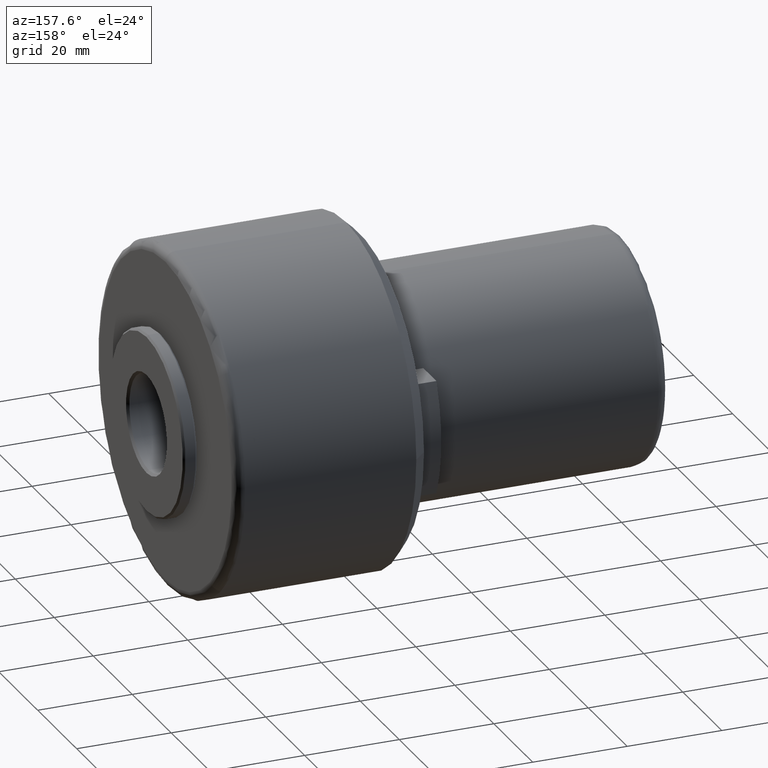
[diagram: clean part render]
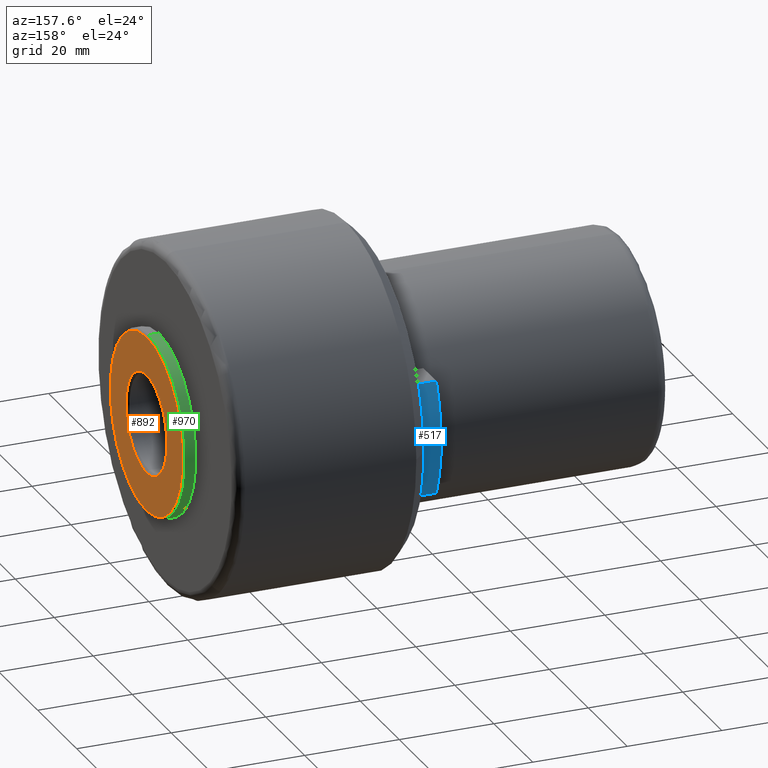
[diagram: same view with three faces highlighted in distinct colors, each labeled with its STEP entity id]
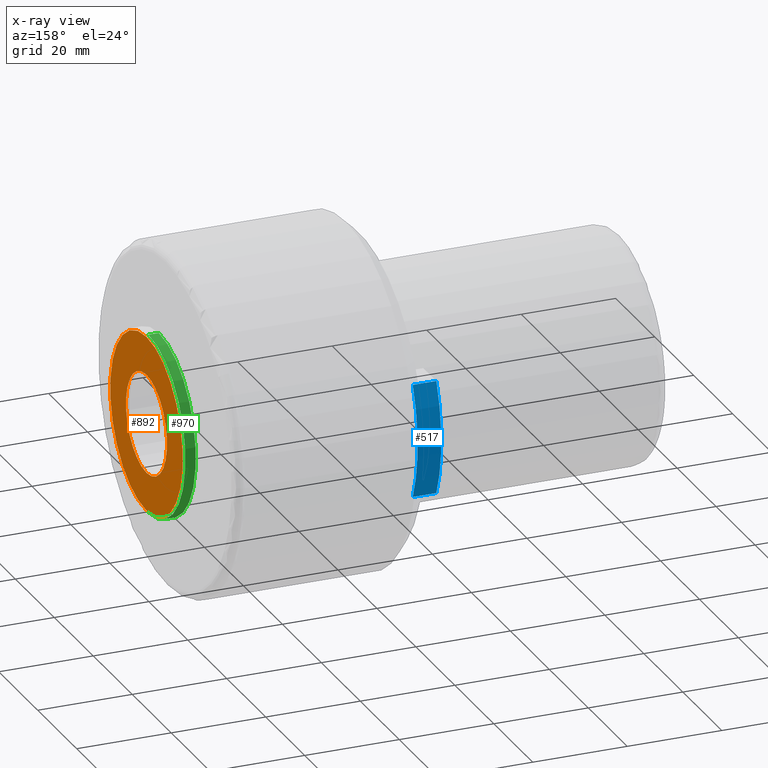
[diagram: x-ray of the same camera — body ghosted, the three highlighted faces saturated]
A machine part, auxiliary view with three faces highlighted in distinct colors.
The next image is the same camera in x-ray (body ghosted, the three faces saturated) — at least one of them is partly hidden behind the body in this view.
Their STEP definitions:

[orange] entity #892 — the highlighted planar face has unit normal (1, -0, 0).
#79 = CARTESIAN_POINT ( 'NONE',  ( 100.5000000000000300, 2.302335982397022300E-015, -18.59999999999997300 ) ) ;
#93 = DIRECTION ( 'NONE',  ( 0.0000000000000000000, 0.0000000000000000000, 1.000000000000000000 ) ) ;
#96 = CARTESIAN_POINT ( 'NONE',  ( 100.5000000000000000, 1.285879139104718700E-015, 10.49999999999998200 ) ) ;
#111 = CARTESIAN_POINT ( 'NONE',  ( 100.5000000000000000, 0.0000000000000000000, 0.0000000000000000000 ) ) ;
#157 = AXIS2_PLACEMENT_3D ( 'NONE', #537, #1290, #649 ) ;
#354 = VERTEX_POINT ( 'NONE', #96 ) ;
#360 = CIRCLE ( 'NONE', #157, 18.59999999999997300 ) ;
#370 = EDGE_CURVE ( 'NONE', #354, #637, #1256, .T. ) ;
#392 = CARTESIAN_POINT ( 'NONE',  ( 100.5000000000000300, 0.0000000000000000000, 18.59999999999997300 ) ) ;
#395 = PLANE ( 'NONE',  #1388 ) ;
#409 = CARTESIAN_POINT ( 'NONE',  ( 100.5000000000000000, 0.0000000000000000000, 0.0000000000000000000 ) ) ;
#413 = EDGE_LOOP ( 'NONE', ( #1030, #1020 ) ) ;
#513 = DIRECTION ( 'NONE',  ( 0.0000000000000000000, 0.0000000000000000000, -1.000000000000000000 ) ) ;
#529 = DIRECTION ( 'NONE',  ( 0.0000000000000000000, 0.0000000000000000000, -1.000000000000000000 ) ) ;
#537 = CARTESIAN_POINT ( 'NONE',  ( 100.5000000000000300, 0.0000000000000000000, 0.0000000000000000000 ) ) ;
#615 = DIRECTION ( 'NONE',  ( 0.0000000000000000000, 0.0000000000000000000, -1.000000000000000000 ) ) ;
#637 = VERTEX_POINT ( 'NONE', #1342 ) ;
#649 = DIRECTION ( 'NONE',  ( 0.0000000000000000000, 0.0000000000000000000, 1.000000000000000000 ) ) ;
#725 = CIRCLE ( 'NONE', #1147, 18.59999999999997300 ) ;
#744 = DIRECTION ( 'NONE',  ( -1.000000000000000000, 0.0000000000000000000, 0.0000000000000000000 ) ) ;
#835 = VERTEX_POINT ( 'NONE', #392 ) ;
#881 = EDGE_LOOP ( 'NONE', ( #1179, #1004 ) ) ;
#892 = ADVANCED_FACE ( 'NONE', ( #1381, #1354 ), #395, .T. ) ;
#968 = VERTEX_POINT ( 'NONE', #79 ) ;
#1004 = ORIENTED_EDGE ( 'NONE', *, *, #1022, .F. ) ;
#1013 = EDGE_CURVE ( 'NONE', #637, #354, #1299, .T. ) ;
#1020 = ORIENTED_EDGE ( 'NONE', *, *, #370, .T. ) ;
#1022 = EDGE_CURVE ( 'NONE', #968, #835, #725, .T. ) ;
#1030 = ORIENTED_EDGE ( 'NONE', *, *, #1013, .T. ) ;
#1061 = EDGE_CURVE ( 'NONE', #835, #968, #360, .T. ) ;
#1089 = DIRECTION ( 'NONE',  ( -1.000000000000000000, 0.0000000000000000000, -0.0000000000000000000 ) ) ;
#1144 = CARTESIAN_POINT ( 'NONE',  ( 100.5000000000000000, -18.82320000000000300, 18.82320000000000300 ) ) ;
#1147 = AXIS2_PLACEMENT_3D ( 'NONE', #1385, #744, #93 ) ;
#1152 = DIRECTION ( 'NONE',  ( 1.000000000000000000, -0.0000000000000000000, 0.0000000000000000000 ) ) ;
#1174 = DIRECTION ( 'NONE',  ( -1.000000000000000000, 0.0000000000000000000, -0.0000000000000000000 ) ) ;
#1179 = ORIENTED_EDGE ( 'NONE', *, *, #1061, .F. ) ;
#1194 = AXIS2_PLACEMENT_3D ( 'NONE', #111, #1089, #615 ) ;
#1238 = AXIS2_PLACEMENT_3D ( 'NONE', #409, #1174, #529 ) ;
#1256 = CIRCLE ( 'NONE', #1194, 10.49999999999998200 ) ;
#1290 = DIRECTION ( 'NONE',  ( -1.000000000000000000, 0.0000000000000000000, 0.0000000000000000000 ) ) ;
#1299 = CIRCLE ( 'NONE', #1238, 10.49999999999998200 ) ;
#1342 = CARTESIAN_POINT ( 'NONE',  ( 100.5000000000000000, 0.0000000000000000000, -10.49999999999998200 ) ) ;
#1354 = FACE_OUTER_BOUND ( 'NONE', #881, .T. ) ;
#1381 = FACE_BOUND ( 'NONE', #413, .T. ) ;
#1385 = CARTESIAN_POINT ( 'NONE',  ( 100.5000000000000300, 0.0000000000000000000, 0.0000000000000000000 ) ) ;
#1388 = AXIS2_PLACEMENT_3D ( 'NONE', #1144, #1152, #513 ) ;

[blue] entity #517 — the highlighted cylindrical surface (partial cylindrical patch) has radius 30 mm, axis along (-1, -0, -0).
#75 = VECTOR ( 'NONE', #372, 1000.000000000000000 ) ;
#87 = CARTESIAN_POINT ( 'NONE',  ( 55.50000000000000000, 3.677383230559753400E-031, 0.0000000000000000000 ) ) ;
#194 = DIRECTION ( 'NONE',  ( 1.000000000000000000, -0.0000000000000000000, 0.0000000000000000000 ) ) ;
#198 = EDGE_CURVE ( 'NONE', #478, #1397, #779, .T. ) ;
#222 = CARTESIAN_POINT ( 'NONE',  ( 55.49999999999999300, 27.49545417074602900, 11.99999999783530000 ) ) ;
#248 = DIRECTION ( 'NONE',  ( 2.312964634635743000E-016, -1.000000000000000000, 0.0000000000000000000 ) ) ;
#258 = CARTESIAN_POINT ( 'NONE',  ( 50.50000000000000000, 27.49545416980128100, 12.00000000000000000 ) ) ;
#284 = CARTESIAN_POINT ( 'NONE',  ( 55.50000000000000000, 0.0000000000000000000, 0.0000000000000000000 ) ) ;
#323 = DIRECTION ( 'NONE',  ( 1.000000000000000000, 1.156482317317871700E-016, 0.0000000000000000000 ) ) ;
#339 = CYLINDRICAL_SURFACE ( 'NONE', #909, 30.00000000000000000 ) ;
#372 = DIRECTION ( 'NONE',  ( -1.000000000000000000, -0.0000000000000000000, -0.0000000000000000000 ) ) ;
#379 = VECTOR ( 'NONE', #194, 1000.000000000000000 ) ;
#408 = CIRCLE ( 'NONE', #1081, 30.00000000000000000 ) ;
#429 = ORIENTED_EDGE ( 'NONE', *, *, #530, .T. ) ;
#434 = VERTEX_POINT ( 'NONE', #258 ) ;
#452 = DIRECTION ( 'NONE',  ( 2.312964634635743000E-016, -1.000000000000000000, 0.0000000000000000000 ) ) ;
#478 = VERTEX_POINT ( 'NONE', #222 ) ;
#488 = CARTESIAN_POINT ( 'NONE',  ( 50.50000000000000000, 27.49545416986751800, 12.00000000000000000 ) ) ;
#494 = DIRECTION ( 'NONE',  ( 2.312964634635743000E-016, -1.000000000000000000, 1.776356839400250500E-015 ) ) ;
#507 = EDGE_CURVE ( 'NONE', #834, #434, #408, .T. ) ;
#517 = ADVANCED_FACE ( 'NONE', ( #671 ), #339, .T. ) ;
#530 = EDGE_CURVE ( 'NONE', #434, #478, #926, .T. ) ;
#671 = FACE_OUTER_BOUND ( 'NONE', #1165, .T. ) ;
#704 = EDGE_CURVE ( 'NONE', #1397, #834, #940, .T. ) ;
#779 = CIRCLE ( 'NONE', #986, 30.00000000000000000 ) ;
#796 = ORIENTED_EDGE ( 'NONE', *, *, #704, .T. ) ;
#805 = CARTESIAN_POINT ( 'NONE',  ( 50.50000000000000000, 27.49545417171844600, -12.00000000000000000 ) ) ;
#834 = VERTEX_POINT ( 'NONE', #1370 ) ;
#909 = AXIS2_PLACEMENT_3D ( 'NONE', #284, #1169, #248 ) ;
#926 = LINE ( 'NONE', #488, #379 ) ;
#940 = LINE ( 'NONE', #805, #75 ) ;
#977 = ORIENTED_EDGE ( 'NONE', *, *, #198, .T. ) ;
#986 = AXIS2_PLACEMENT_3D ( 'NONE', #87, #1155, #452 ) ;
#1081 = AXIS2_PLACEMENT_3D ( 'NONE', #1132, #323, #494 ) ;
#1132 = CARTESIAN_POINT ( 'NONE',  ( 50.50000000000000000, -5.782411586589351700E-016, 0.0000000000000000000 ) ) ;
#1155 = DIRECTION ( 'NONE',  ( -1.000000000000000000, -1.156482317317871700E-016, -0.0000000000000000000 ) ) ;
#1165 = EDGE_LOOP ( 'NONE', ( #796, #1343, #429, #977 ) ) ;
#1169 = DIRECTION ( 'NONE',  ( -1.000000000000000000, -1.156482317317871700E-016, -0.0000000000000000000 ) ) ;
#1210 = CARTESIAN_POINT ( 'NONE',  ( 55.49999999999999300, 27.49545417165220900, -11.99999999787949900 ) ) ;
#1343 = ORIENTED_EDGE ( 'NONE', *, *, #507, .T. ) ;
#1370 = CARTESIAN_POINT ( 'NONE',  ( 50.50000000000000000, 27.49545417072674200, -12.00000000000000000 ) ) ;
#1397 = VERTEX_POINT ( 'NONE', #1210 ) ;

[green] entity #970 — the highlighted cylindrical surface (partial cylindrical patch) has radius 19 mm, axis along (-1, 0, 0).
#46 = DIRECTION ( 'NONE',  ( -1.000000000000000000, -0.0000000000000000000, -0.0000000000000000000 ) ) ;
#104 = LINE ( 'NONE', #1082, #1218 ) ;
#134 = AXIS2_PLACEMENT_3D ( 'NONE', #1053, #632, #738 ) ;
#148 = CYLINDRICAL_SURFACE ( 'NONE', #134, 19.00000000000000000 ) ;
#159 = CARTESIAN_POINT ( 'NONE',  ( 97.89999999999999100, 2.326828918379970200E-015, -18.99999999999998900 ) ) ;
#207 = VERTEX_POINT ( 'NONE', #1133 ) ;
#272 = ORIENTED_EDGE ( 'NONE', *, *, #374, .T. ) ;
#283 = AXIS2_PLACEMENT_3D ( 'NONE', #450, #1205, #570 ) ;
#293 = EDGE_CURVE ( 'NONE', #207, #663, #498, .T. ) ;
#340 = DIRECTION ( 'NONE',  ( 0.0000000000000000000, 0.0000000000000000000, -1.000000000000000000 ) ) ;
#374 = EDGE_CURVE ( 'NONE', #1270, #663, #104, .T. ) ;
#425 = FACE_OUTER_BOUND ( 'NONE', #1175, .T. ) ;
#450 = CARTESIAN_POINT ( 'NONE',  ( 100.0999999999999900, 0.0000000000000000000, 0.0000000000000000000 ) ) ;
#498 = CIRCLE ( 'NONE', #664, 18.99999999999998900 ) ;
#508 = DIRECTION ( 'NONE',  ( -1.000000000000000000, 0.0000000000000000000, 0.0000000000000000000 ) ) ;
#570 = DIRECTION ( 'NONE',  ( 0.0000000000000000000, 0.0000000000000000000, 1.000000000000000000 ) ) ;
#584 = CARTESIAN_POINT ( 'NONE',  ( 97.89999999999999100, 0.0000000000000000000, 0.0000000000000000000 ) ) ;
#632 = DIRECTION ( 'NONE',  ( -1.000000000000000000, 0.0000000000000000000, 0.0000000000000000000 ) ) ;
#663 = VERTEX_POINT ( 'NONE', #159 ) ;
#664 = AXIS2_PLACEMENT_3D ( 'NONE', #584, #46, #340 ) ;
#695 = ORIENTED_EDGE ( 'NONE', *, *, #1300, .T. ) ;
#738 = DIRECTION ( 'NONE',  ( 0.0000000000000000000, 0.0000000000000000000, 1.000000000000000000 ) ) ;
#758 = VERTEX_POINT ( 'NONE', #1246 ) ;
#767 = VECTOR ( 'NONE', #508, 1000.000000000000000 ) ;
#769 = CIRCLE ( 'NONE', #283, 19.00000000000000000 ) ;
#839 = EDGE_CURVE ( 'NONE', #758, #207, #1055, .T. ) ;
#970 = ADVANCED_FACE ( 'NONE', ( #425 ), #148, .T. ) ;
#1040 = CARTESIAN_POINT ( 'NONE',  ( 100.0999999999999900, 0.0000000000000000000, 19.00000000000000000 ) ) ;
#1053 = CARTESIAN_POINT ( 'NONE',  ( 100.0999999999999900, 0.0000000000000000000, 0.0000000000000000000 ) ) ;
#1055 = LINE ( 'NONE', #1040, #767 ) ;
#1082 = CARTESIAN_POINT ( 'NONE',  ( 100.0999999999999900, 2.326828918379971000E-015, -19.00000000000000000 ) ) ;
#1085 = ORIENTED_EDGE ( 'NONE', *, *, #293, .F. ) ;
#1133 = CARTESIAN_POINT ( 'NONE',  ( 97.89999999999999100, 0.0000000000000000000, 18.99999999999998900 ) ) ;
#1175 = EDGE_LOOP ( 'NONE', ( #695, #272, #1085, #1258 ) ) ;
#1205 = DIRECTION ( 'NONE',  ( -1.000000000000000000, 0.0000000000000000000, 0.0000000000000000000 ) ) ;
#1218 = VECTOR ( 'NONE', #1305, 1000.000000000000000 ) ;
#1246 = CARTESIAN_POINT ( 'NONE',  ( 100.0999999999999900, 0.0000000000000000000, 19.00000000000000000 ) ) ;
#1258 = ORIENTED_EDGE ( 'NONE', *, *, #839, .F. ) ;
#1270 = VERTEX_POINT ( 'NONE', #1302 ) ;
#1300 = EDGE_CURVE ( 'NONE', #758, #1270, #769, .T. ) ;
#1302 = CARTESIAN_POINT ( 'NONE',  ( 100.0999999999999900, 2.326828918379971000E-015, -19.00000000000000000 ) ) ;
#1305 = DIRECTION ( 'NONE',  ( -1.000000000000000000, 0.0000000000000000000, 0.0000000000000000000 ) ) ;